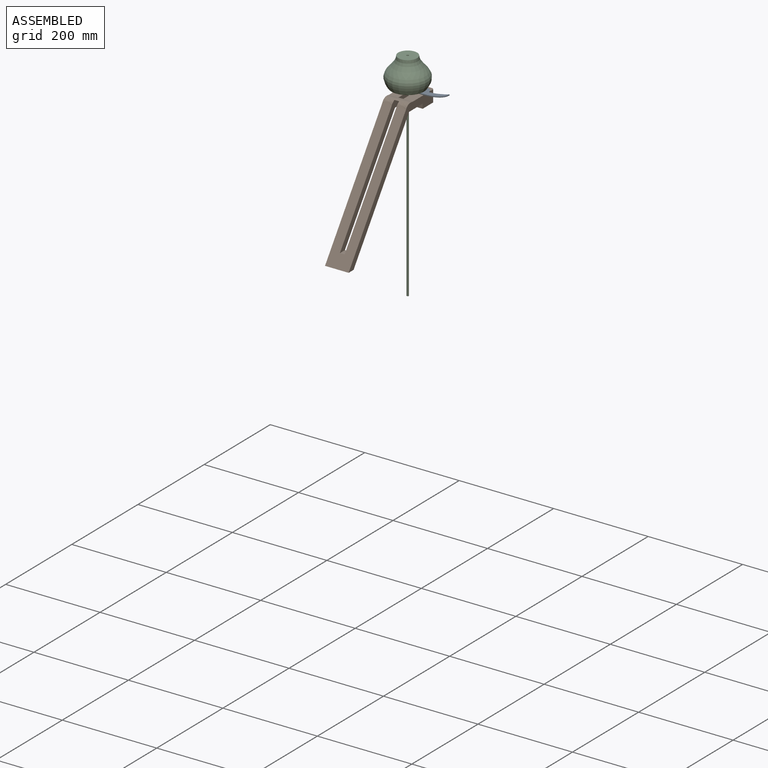
[diagram: assembled view]
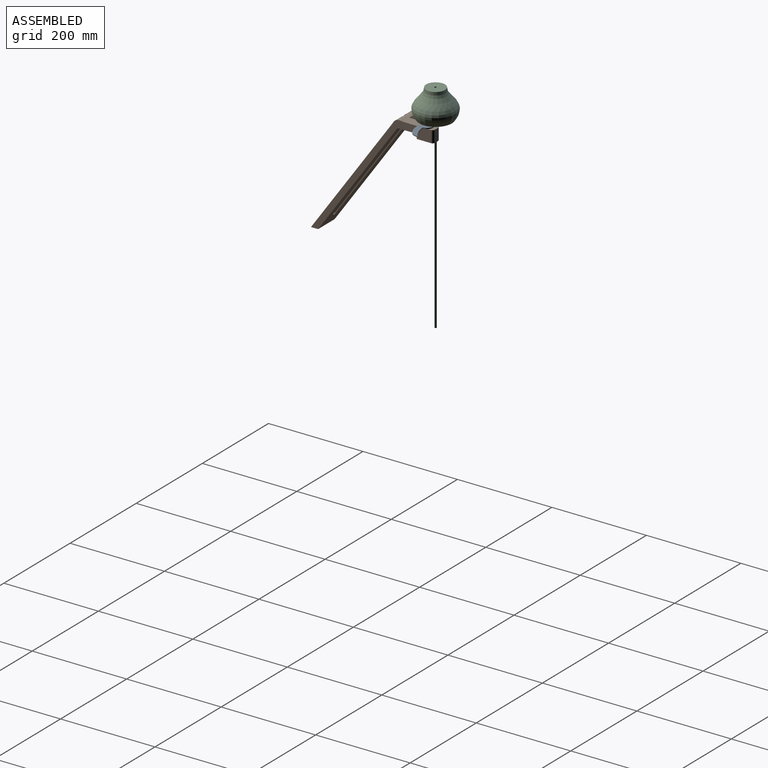
[diagram: assembled view, second angle]
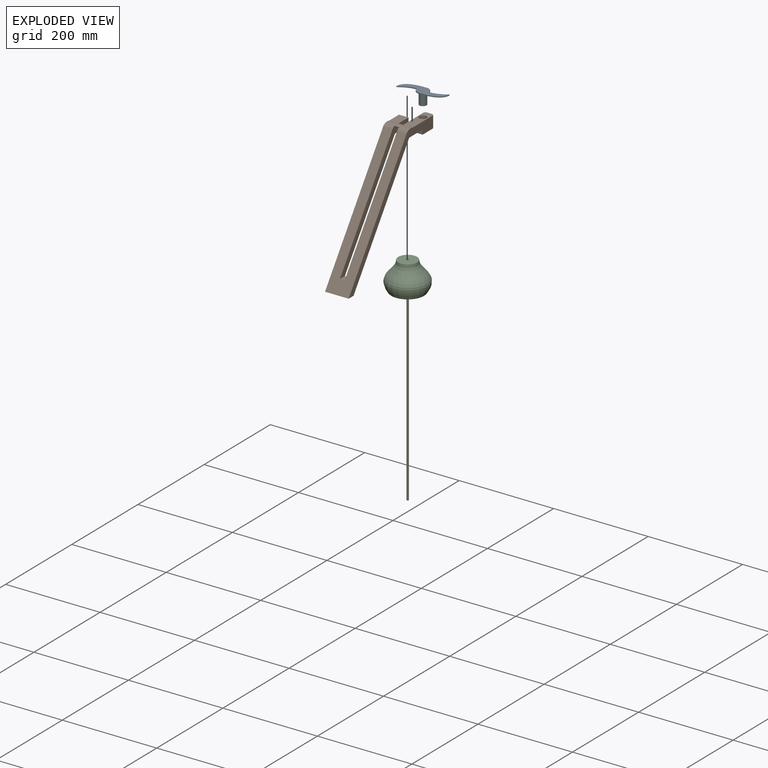
[diagram: exploded view]
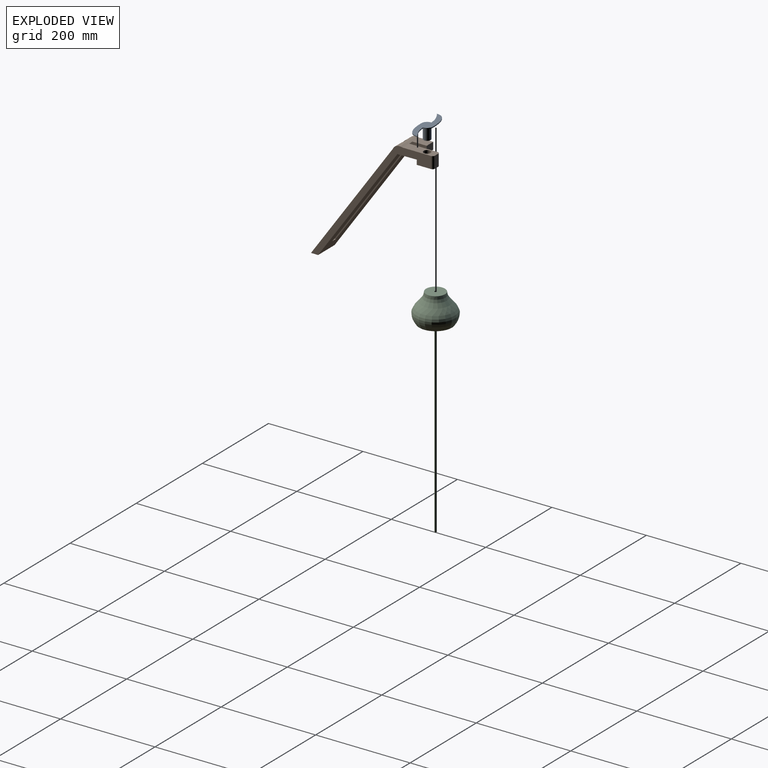
[diagram: exploded view, second angle]
ASSEMBLY  parts=3 mates=2
PART A: 10 faces, bbox 95x25x27 mm
  f0: cylinder r=7.5mm len=25mm, axis (0,0,1), area 1178.1mm2, adj f1,f9
  f1: plane 15x15mm, normal (0,0,-1), area 176.7mm2, adj f0
  f2: cylinder r=12.5mm len=12.5mm, axis (0,0,-1), area 39.3mm2, adj f3,f7,f8,f9
  f3: extruded ~47.5x25mm, area 119.9mm2, adj f2,f4,f8,f9
  f4: extruded ~35x12.5mm, area 75.6mm2, adj f3,f5,f8,f9
  f5: cylinder r=12.5mm len=12.5mm, axis (0,0,-1), area 39.3mm2, adj f4,f6,f8,f9
  f6: extruded ~47.5x25mm, area 119.9mm2, adj f5,f7,f8,f9
  f7: extruded ~35x12.5mm, area 75.6mm2, adj f2,f6,f8,f9
  f8: plane 95x25mm, normal (0,0,1), area 1328.8mm2, adj f2,f3,f4,f5,f6,f7
  f9: plane 95x25mm, normal (0,0,-1), area 1152.1mm2, adj f0,f2,f3,f4,f5,f6,f7
PART B: 21 faces, bbox 50x258.9x256 mm
  f0: plane 65x20mm, normal (0,0,1), area 1112.6mm2, adj f2,f9,f13,f15,f16,f17,f19
  f1: plane 40.86x20mm, normal (0,0.01,-1), area 817.2mm2, adj f4,f9,f13,f18
  f2: extruded ~50x20.87mm, area 1111.6mm2, adj f0,f3,f7,f9,f10,f11,f13,f14
  f3: plane 245.1x173mm, normal (0,-0.82,0.58), area 12286.5mm2, adj f2,f8,f9,f10,f12,f13,f14
  f4: plane 238.03x168.01mm, normal (0,0.82,-0.58), area 11940.6mm2, adj f1,f5,f8,f9,f10,f12,f13,f14
  f5: plane 40.86x20mm, normal (0,0.01,-1), area 817.2mm2, adj f4,f6,f10,f14
  f6: plane 20x15mm, normal (0,1,0), area 300mm2, adj f5,f7,f10,f14
  f7: plane 30x20mm, normal (0,0,1), area 600mm2, adj f2,f6,f10,f14
  f8: plane 50x15mm, normal (0,0,-1), area 750mm2, adj f3,f4,f9,f10
  f9: plane 256.02x253.86mm, normal (1,0,0), area 5093.6mm2, adj f0,f1,f2,f3,f4,f8,f15,f18
  f10: plane 256.02x223.86mm, normal (-1,0,0), area 4343.6mm2, adj f2,f3,f4,f5,f6,f7,f8
  f11: plane 12.17x10mm, normal (0,0,-1), area 121.7mm2, adj f2,f13,f14
  f12: plane 15x10mm, normal (0,0,1), area 150mm2, adj f3,f4,f13,f14
  f13: plane 237.34x230.47mm, normal (-1,0,0), area 4735.1mm2, adj f0,f1,f2,f3,f4,f11,f12,f17
  f14: plane 230.47x207.34mm, normal (1,0,0), area 3985.1mm2, adj f2,f3,f4,f5,f6,f7,f11,f12
  f15: cylinder r=5mm len=25mm, axis (0,0,1), area 196.3mm2, adj f0,f9,f16,f20
  f16: plane 25x10mm, normal (0,1,0), area 250mm2, adj f0,f15,f17,f20
  f17: cylinder r=5mm len=25mm, axis (0,0,1), area 196.3mm2, adj f0,f13,f16,f20
  f18: plane 20x10mm, normal (0,-1,0), area 200mm2, adj f1,f9,f13,f20
  f19: cylinder r=7.5mm len=25mm, axis (0,0,1), area 1178.1mm2, adj f0,f20
  f20: plane 35x20mm, normal (0,0,-1), area 512.6mm2, adj f9,f13,f15,f16,f17,f18,f19
PART C: 8 faces, bbox 84.5x84.5x460 mm
  f0: plane 40x40mm, normal (0,0,1), area 1241.6mm2, adj f1,f7
  f1: cylinder r=2.19mm len=57.85mm, axis (0,0,-1), area 796.2mm2, adj f0,f2
  f2: cone r=2.19mm half-angle=45.6deg, axis (0,0,1), area 21.1mm2, adj f1
  f3: plane 4x4mm, normal (0,0,-1), area 12.6mm2, adj f4
  f4: cylinder r=2mm len=397.37mm, axis (0,0,-1), area 4993.5mm2, adj f3,f5
  f5: cone r=4.69mm half-angle=45.6deg, axis (0,0,1), area 79mm2, adj f4,f6
  f6: plane 69.37x69.37mm, normal (0,0,-1), area 3710.8mm2, adj f5,f7
  f7: revolved ~84.46x84.46mm, area 14444.6mm2, adj f0,f6
PLACE A t=(10.82,103.69,124.81)mm
PLACE B t=(-29.18,-135.18,-128.6)mm fixed
PLACE C t=(-19.18,100.56,126.81)mm
MATE revolute A.f0 <-> B.f19  axis (0,0,1) through (10.82,103.69,112.31)mm
MATE planar C.f1 <-> A.f8  axis (0,0,-1) through (-19.18,100.56,126.81)mm
